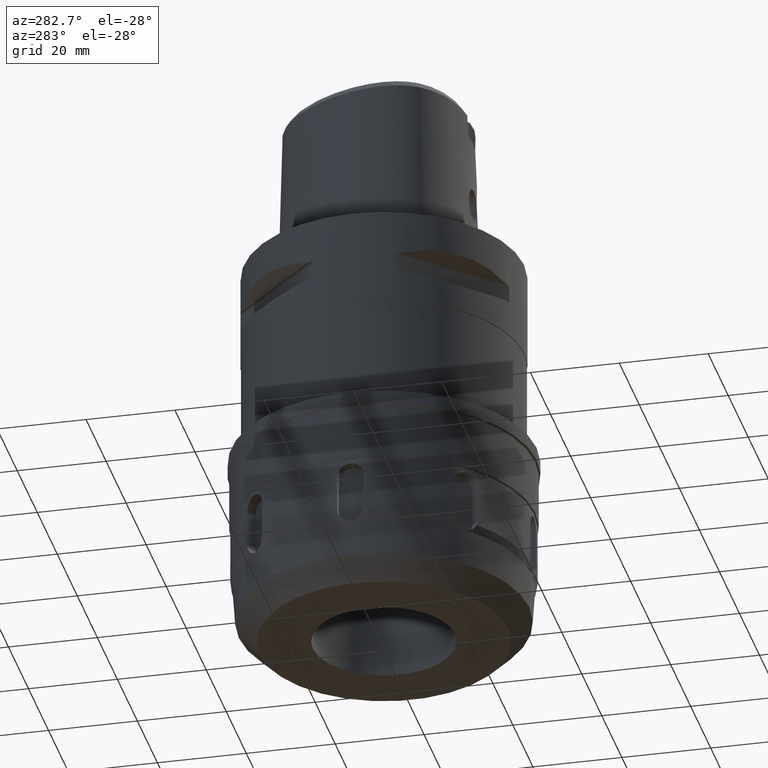
[diagram: clean part render]
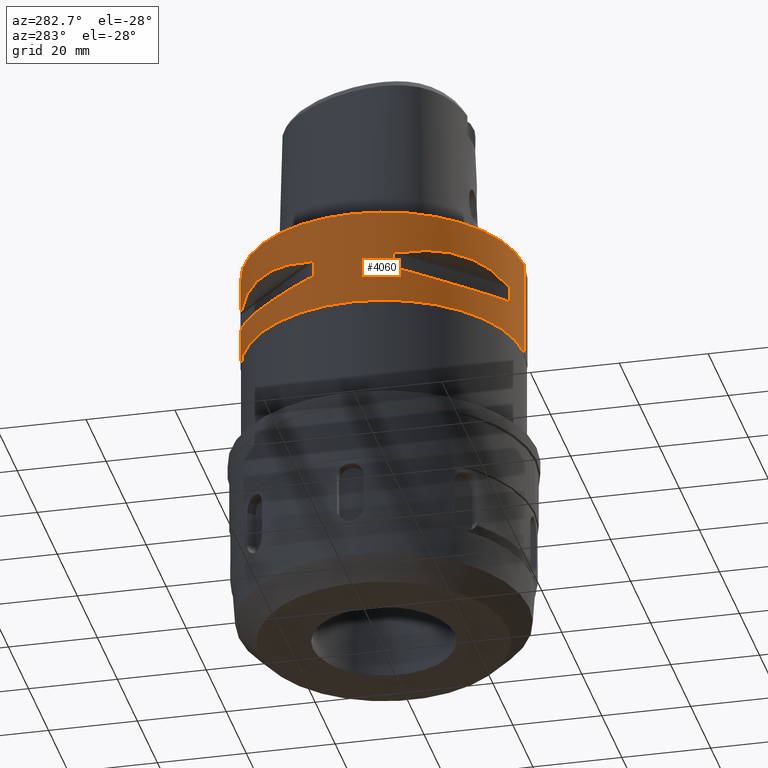
[diagram: same view with one face highlighted and labeled with its STEP entity id]
A machine part, auxiliary view. The second image highlights one B-rep face of the part: STEP entity #4060.
In plain terms, the highlighted cylindrical surface (partial cylindrical patch) has radius 31.5 mm, axis along (0, 0, -1).
Its self-contained STEP definition (entity closure, byte-faithful):
#291=CARTESIAN_POINT('',(0.E0,1.279755905109E-14,0.E0));
#292=DIRECTION('',(0.E0,0.E0,-1.E0));
#293=DIRECTION('',(0.E0,-1.E0,0.E0));
#294=AXIS2_PLACEMENT_3D('',#291,#292,#293);
#393=DIRECTION('',(0.E0,0.E0,-1.E0));
#394=VECTOR('',#393,2.19E1);
#395=CARTESIAN_POINT('',(0.E0,-3.15E1,0.E0));
#396=LINE('',#395,#394);
#400=DIRECTION('',(0.E0,0.E0,-1.E0));
#401=VECTOR('',#400,4.1E0);
#402=CARTESIAN_POINT('',(-8.981198972018E0,3.019251670572E1,-9.95E0));
#403=LINE('',#402,#401);
#407=CARTESIAN_POINT('',(-1.044775724750E1,2.971690375018E1,-1.405E1));
#408=CARTESIAN_POINT('',(-1.282388988809E1,2.888151197365E1,-1.467900482380E1));
#409=CARTESIAN_POINT('',(-1.711282138769E1,2.674739463903E1,-1.555870402292E1));
#410=CARTESIAN_POINT('',(-2.244574140438E1,2.244574140438E1,-1.597971692370E1));
#411=CARTESIAN_POINT('',(-2.674739463903E1,1.711282138769E1,-1.555870402292E1));
#412=CARTESIAN_POINT('',(-2.888151197365E1,1.282388988809E1,-1.467900482380E1));
#413=CARTESIAN_POINT('',(-2.971690375018E1,1.044775724750E1,-1.405E1));
#418=DIRECTION('',(0.E0,0.E0,1.E0));
#419=VECTOR('',#418,4.1E0);
#420=CARTESIAN_POINT('',(-3.019251670572E1,8.981198972018E0,-1.405E1));
#421=LINE('',#420,#419);
#425=DIRECTION('',(0.E0,0.E0,-1.E0));
#426=VECTOR('',#425,4.1E0);
#427=CARTESIAN_POINT('',(-3.019251670572E1,-8.981198972018E0,-9.95E0));
#428=LINE('',#427,#426);
#432=CARTESIAN_POINT('',(-2.971690375018E1,-1.044775724750E1,-1.405E1));
#433=CARTESIAN_POINT('',(-2.888151197365E1,-1.282388988809E1,
-1.467900482380E1));
#434=CARTESIAN_POINT('',(-2.674739463903E1,-1.711282138769E1,
-1.555870402292E1));
#435=CARTESIAN_POINT('',(-2.244574140438E1,-2.244574140438E1,
-1.597971692370E1));
#436=CARTESIAN_POINT('',(-1.711282138769E1,-2.674739463903E1,
-1.555870402292E1));
#437=CARTESIAN_POINT('',(-1.282388988809E1,-2.888151197365E1,
-1.467900482380E1));
#438=CARTESIAN_POINT('',(-1.044775724750E1,-2.971690375018E1,-1.405E1));
#443=DIRECTION('',(0.E0,0.E0,1.E0));
#444=VECTOR('',#443,4.1E0);
#445=CARTESIAN_POINT('',(-8.981198972018E0,-3.019251670572E1,-1.405E1));
#446=LINE('',#445,#444);
#450=DIRECTION('',(0.E0,0.E0,-1.E0));
#451=VECTOR('',#450,2.19E1);
#452=CARTESIAN_POINT('',(0.E0,3.15E1,0.E0));
#453=LINE('',#452,#451);
#530=CARTESIAN_POINT('',(0.E0,0.E0,-2.19E1));
#531=DIRECTION('',(0.E0,0.E0,1.E0));
#532=DIRECTION('',(0.E0,1.E0,0.E0));
#533=AXIS2_PLACEMENT_3D('',#530,#531,#532);
#2809=CARTESIAN_POINT('',(-1.044775724750E1,2.971690375018E1,
-9.949999999999E0));
#2810=CARTESIAN_POINT('',(-1.282388988809E1,2.888151197365E1,
-9.320995176198E0));
#2811=CARTESIAN_POINT('',(-1.711282138769E1,2.674739463903E1,
-8.441295977074E0));
#2812=CARTESIAN_POINT('',(-2.244574140438E1,2.244574140438E1,
-8.020283076294E0));
#2813=CARTESIAN_POINT('',(-2.674739463903E1,1.711282138769E1,
-8.441295977074E0));
#2814=CARTESIAN_POINT('',(-2.888151197365E1,1.282388988809E1,
-9.320995176198E0));
#2815=CARTESIAN_POINT('',(-2.971690375018E1,1.044775724750E1,
-9.949999999999E0));
#2820=CARTESIAN_POINT('',(0.E0,1.279755905109E-14,-9.95E0));
#2821=DIRECTION('',(0.E0,0.E0,1.E0));
#2822=DIRECTION('',(-9.433937698469E-1,3.316748332541E-1,0.E0));
#2823=AXIS2_PLACEMENT_3D('',#2820,#2821,#2822);
#2828=CARTESIAN_POINT('',(0.E0,1.279755905109E-14,-9.95E0));
#2829=DIRECTION('',(0.E0,0.E0,1.E0));
#2830=DIRECTION('',(-2.851174276832E-1,9.584925938323E-1,0.E0));
#2831=AXIS2_PLACEMENT_3D('',#2828,#2829,#2830);
#2850=CARTESIAN_POINT('',(0.E0,1.279755905109E-14,-1.405E1));
#2851=DIRECTION('',(0.E0,0.E0,-1.E0));
#2852=DIRECTION('',(-9.584925938323E-1,2.851174276832E-1,0.E0));
#2853=AXIS2_PLACEMENT_3D('',#2850,#2851,#2852);
#2858=CARTESIAN_POINT('',(0.E0,1.279755905109E-14,-1.405E1));
#2859=DIRECTION('',(0.E0,0.E0,-1.E0));
#2860=DIRECTION('',(-3.316748332541E-1,9.433937698469E-1,0.E0));
#2861=AXIS2_PLACEMENT_3D('',#2858,#2859,#2860);
#2880=CARTESIAN_POINT('',(-2.971690375018E1,-1.044775724750E1,
-9.949999999999E0));
#2881=CARTESIAN_POINT('',(-2.888151197365E1,-1.282388988809E1,
-9.320995176198E0));
#2882=CARTESIAN_POINT('',(-2.674739463903E1,-1.711282138769E1,
-8.441295977074E0));
#2883=CARTESIAN_POINT('',(-2.244574140438E1,-2.244574140438E1,
-8.020283076294E0));
#2884=CARTESIAN_POINT('',(-1.711282138769E1,-2.674739463903E1,
-8.441295977074E0));
#2885=CARTESIAN_POINT('',(-1.282388988809E1,-2.888151197365E1,
-9.320995176198E0));
#2886=CARTESIAN_POINT('',(-1.044775724750E1,-2.971690375018E1,
-9.949999999999E0));
#2891=CARTESIAN_POINT('',(0.E0,1.279755905109E-14,-9.95E0));
#2892=DIRECTION('',(0.E0,0.E0,1.E0));
#2893=DIRECTION('',(-3.316748332541E-1,-9.433937698469E-1,0.E0));
#2894=AXIS2_PLACEMENT_3D('',#2891,#2892,#2893);
#2899=CARTESIAN_POINT('',(0.E0,1.279755905109E-14,-9.95E0));
#2900=DIRECTION('',(0.E0,0.E0,1.E0));
#2901=DIRECTION('',(-9.584925938323E-1,-2.851174276832E-1,0.E0));
#2902=AXIS2_PLACEMENT_3D('',#2899,#2900,#2901);
#2921=CARTESIAN_POINT('',(0.E0,1.279755905109E-14,-1.405E1));
#2922=DIRECTION('',(0.E0,0.E0,-1.E0));
#2923=DIRECTION('',(-2.851174276832E-1,-9.584925938323E-1,0.E0));
#2924=AXIS2_PLACEMENT_3D('',#2921,#2922,#2923);
#2929=CARTESIAN_POINT('',(0.E0,1.279755905109E-14,-1.405E1));
#2930=DIRECTION('',(0.E0,0.E0,-1.E0));
#2931=DIRECTION('',(-9.433937698469E-1,-3.316748332541E-1,0.E0));
#2932=AXIS2_PLACEMENT_3D('',#2929,#2930,#2931);
#2977=CARTESIAN_POINT('',(0.E0,-3.15E1,0.E0));
#2978=CARTESIAN_POINT('',(0.E0,3.15E1,0.E0));
#2979=VERTEX_POINT('',#2977);
#2980=VERTEX_POINT('',#2978);
#2981=CARTESIAN_POINT('',(0.E0,3.15E1,-2.19E1));
#2982=VERTEX_POINT('',#2981);
#2983=CARTESIAN_POINT('',(0.E0,-3.15E1,-2.19E1));
#2984=VERTEX_POINT('',#2983);
#2985=VERTEX_POINT('',#2809);
#2986=VERTEX_POINT('',#2815);
#2987=CARTESIAN_POINT('',(-8.981198972020E0,3.019251670572E1,-9.95E0));
#2988=VERTEX_POINT('',#2987);
#2989=CARTESIAN_POINT('',(-8.981198972018E0,3.019251670572E1,-1.405E1));
#2990=VERTEX_POINT('',#2989);
#2991=CARTESIAN_POINT('',(-1.044775724750E1,2.971690375018E1,-1.405E1));
#2992=VERTEX_POINT('',#2991);
#2993=VERTEX_POINT('',#413);
#2994=CARTESIAN_POINT('',(-3.019251670572E1,8.981198972020E0,-1.405E1));
#2995=VERTEX_POINT('',#2994);
#2996=CARTESIAN_POINT('',(-3.019251670572E1,8.981198972018E0,-9.95E0));
#2997=VERTEX_POINT('',#2996);
#2998=VERTEX_POINT('',#2880);
#2999=VERTEX_POINT('',#2886);
#3000=CARTESIAN_POINT('',(-3.019251670572E1,-8.981198972020E0,-9.95E0));
#3001=VERTEX_POINT('',#3000);
#3002=CARTESIAN_POINT('',(-3.019251670572E1,-8.981198972018E0,-1.405E1));
#3003=VERTEX_POINT('',#3002);
#3004=CARTESIAN_POINT('',(-2.971690375018E1,-1.044775724750E1,-1.405E1));
#3005=VERTEX_POINT('',#3004);
#3006=VERTEX_POINT('',#438);
#3007=CARTESIAN_POINT('',(-8.981198972020E0,-3.019251670572E1,-1.405E1));
#3008=VERTEX_POINT('',#3007);
#3009=CARTESIAN_POINT('',(-8.981198972018E0,-3.019251670572E1,-9.95E0));
#3010=VERTEX_POINT('',#3009);
#4010=CARTESIAN_POINT('',(0.E0,1.279755905109E-14,4.5E0));
#4011=DIRECTION('',(0.E0,0.E0,-1.E0));
#4012=DIRECTION('',(0.E0,-1.E0,0.E0));
#4013=AXIS2_PLACEMENT_3D('',#4010,#4011,#4012);
#4014=CYLINDRICAL_SURFACE('',#4013,3.15E1);
#4016=ORIENTED_EDGE('',*,*,#4015,.F.);
#4017=ORIENTED_EDGE('',*,*,#3998,.F.);
#4019=ORIENTED_EDGE('',*,*,#4018,.T.);
#4021=ORIENTED_EDGE('',*,*,#4020,.F.);
#4022=EDGE_LOOP('',(#4016,#4017,#4019,#4021));
#4023=FACE_OUTER_BOUND('',#4022,.F.);
#4025=ORIENTED_EDGE('',*,*,#4024,.F.);
#4027=ORIENTED_EDGE('',*,*,#4026,.F.);
#4029=ORIENTED_EDGE('',*,*,#4028,.T.);
#4031=ORIENTED_EDGE('',*,*,#4030,.F.);
#4033=ORIENTED_EDGE('',*,*,#4032,.T.);
#4035=ORIENTED_EDGE('',*,*,#4034,.F.);
#4037=ORIENTED_EDGE('',*,*,#4036,.T.);
#4039=ORIENTED_EDGE('',*,*,#4038,.F.);
#4040=EDGE_LOOP('',(#4025,#4027,#4029,#4031,#4033,#4035,#4037,#4039));
#4041=FACE_BOUND('',#4040,.F.);
#4043=ORIENTED_EDGE('',*,*,#4042,.F.);
#4045=ORIENTED_EDGE('',*,*,#4044,.F.);
#4047=ORIENTED_EDGE('',*,*,#4046,.T.);
#4049=ORIENTED_EDGE('',*,*,#4048,.F.);
#4051=ORIENTED_EDGE('',*,*,#4050,.T.);
#4053=ORIENTED_EDGE('',*,*,#4052,.F.);
#4055=ORIENTED_EDGE('',*,*,#4054,.T.);
#4057=ORIENTED_EDGE('',*,*,#4056,.F.);
#4058=EDGE_LOOP('',(#4043,#4045,#4047,#4049,#4051,#4053,#4055,#4057));
#4059=FACE_BOUND('',#4058,.F.);
#295=CIRCLE('',#294,3.15E1);
#414=B_SPLINE_CURVE_WITH_KNOTS('',3,(#407,#408,#409,#410,#411,#412,#413),
.UNSPECIFIED.,.F.,.F.,(4,1,1,1,4),(0.E0,2.5E-1,5.E-1,7.5E-1,1.E0),
.UNSPECIFIED.);
#439=B_SPLINE_CURVE_WITH_KNOTS('',3,(#432,#433,#434,#435,#436,#437,#438),
.UNSPECIFIED.,.F.,.F.,(4,1,1,1,4),(0.E0,2.5E-1,5.E-1,7.5E-1,1.E0),
.UNSPECIFIED.);
#534=CIRCLE('',#533,3.15E1);
#2816=B_SPLINE_CURVE_WITH_KNOTS('',3,(#2809,#2810,#2811,#2812,#2813,#2814,
#2815),.UNSPECIFIED.,.F.,.F.,(4,1,1,1,4),(0.E0,2.5E-1,5.E-1,7.5E-1,1.E0),
.UNSPECIFIED.);
#2824=CIRCLE('',#2823,3.15E1);
#2832=CIRCLE('',#2831,3.15E1);
#2854=CIRCLE('',#2853,3.15E1);
#2862=CIRCLE('',#2861,3.15E1);
#2887=B_SPLINE_CURVE_WITH_KNOTS('',3,(#2880,#2881,#2882,#2883,#2884,#2885,
#2886),.UNSPECIFIED.,.F.,.F.,(4,1,1,1,4),(0.E0,2.5E-1,5.E-1,7.5E-1,1.E0),
.UNSPECIFIED.);
#2895=CIRCLE('',#2894,3.15E1);
#2903=CIRCLE('',#2902,3.15E1);
#2925=CIRCLE('',#2924,3.15E1);
#2933=CIRCLE('',#2932,3.15E1);
#3998=EDGE_CURVE('',#2979,#2980,#295,.T.);
#4015=EDGE_CURVE('',#2980,#2982,#453,.T.);
#4018=EDGE_CURVE('',#2979,#2984,#396,.T.);
#4020=EDGE_CURVE('',#2982,#2984,#534,.T.);
#4024=EDGE_CURVE('',#2985,#2986,#2816,.T.);
#4026=EDGE_CURVE('',#2988,#2985,#2832,.T.);
#4028=EDGE_CURVE('',#2988,#2990,#403,.T.);
#4030=EDGE_CURVE('',#2992,#2990,#2862,.T.);
#4032=EDGE_CURVE('',#2992,#2993,#414,.T.);
#4034=EDGE_CURVE('',#2995,#2993,#2854,.T.);
#4036=EDGE_CURVE('',#2995,#2997,#421,.T.);
#4038=EDGE_CURVE('',#2986,#2997,#2824,.T.);
#4042=EDGE_CURVE('',#2998,#2999,#2887,.T.);
#4044=EDGE_CURVE('',#3001,#2998,#2903,.T.);
#4046=EDGE_CURVE('',#3001,#3003,#428,.T.);
#4048=EDGE_CURVE('',#3005,#3003,#2933,.T.);
#4050=EDGE_CURVE('',#3005,#3006,#439,.T.);
#4052=EDGE_CURVE('',#3008,#3006,#2925,.T.);
#4054=EDGE_CURVE('',#3008,#3010,#446,.T.);
#4056=EDGE_CURVE('',#2999,#3010,#2895,.T.);
#4060=ADVANCED_FACE('',(#4023,#4041,#4059),#4014,.T.);